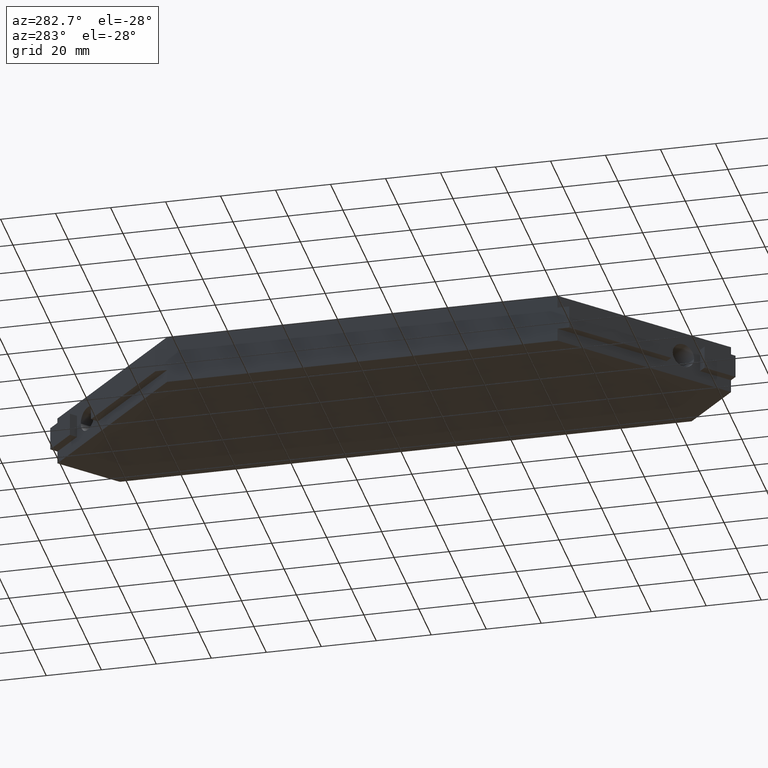
[diagram: clean part render]
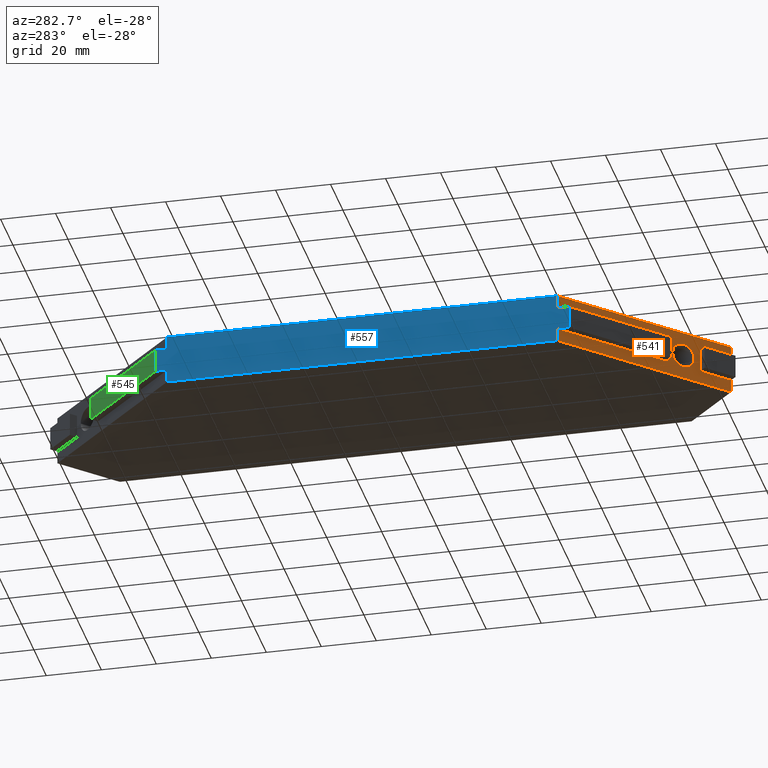
[diagram: same view with three faces highlighted in distinct colors, each labeled with its STEP entity id]
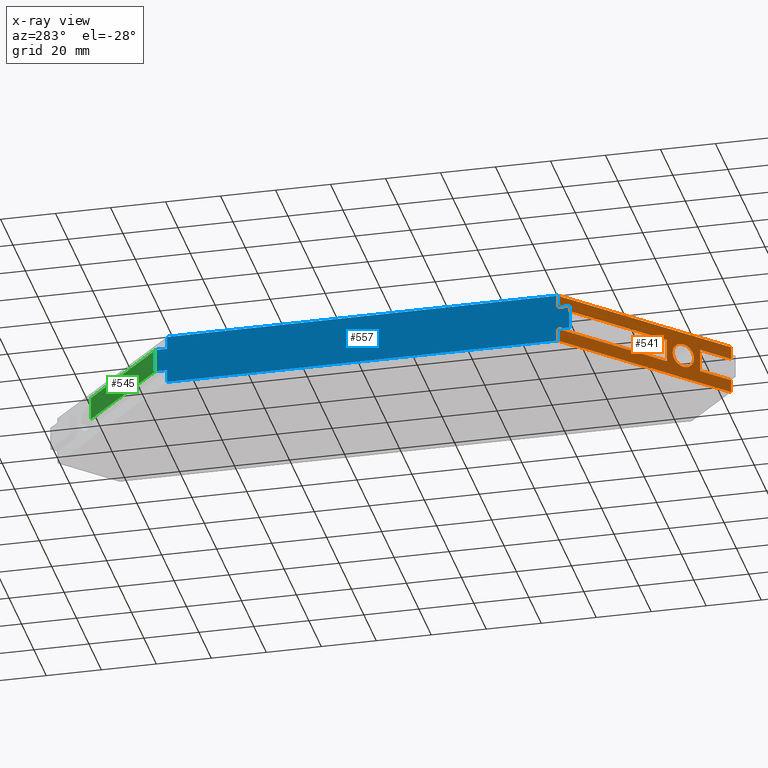
[diagram: x-ray of the same camera — body ghosted, the three highlighted faces saturated]
A machine part, auxiliary view with three faces highlighted in distinct colors.
The next image is the same camera in x-ray (body ghosted, the three faces saturated) — at least one of them is partly hidden behind the body in this view.
Their STEP definitions:

[orange] entity #541 — the highlighted planar face has unit normal (0.7071, 0.7071, 0).
#20=CIRCLE('',#577,4.49999999999994);
#28=FACE_BOUND('',#73,.T.);
#39=FACE_OUTER_BOUND('',#72,.T.);
#72=EDGE_LOOP('',(#384,#385,#386,#387,#388,#389,#390,#391,#392,#393,#394,
#395));
#73=EDGE_LOOP('',(#396));
#123=LINE('',#797,#189);
#124=LINE('',#799,#190);
#125=LINE('',#801,#191);
#126=LINE('',#803,#192);
#127=LINE('',#805,#193);
#128=LINE('',#807,#194);
#129=LINE('',#809,#195);
#130=LINE('',#811,#196);
#131=LINE('',#813,#197);
#132=LINE('',#815,#198);
#133=LINE('',#817,#199);
#134=LINE('',#818,#200);
#189=VECTOR('',#639,4.75);
#190=VECTOR('',#640,45.831998592191);
#191=VECTOR('',#641,8.5);
#192=VECTOR('',#642,45.831998592191);
#193=VECTOR('',#643,4.75);
#194=VECTOR('',#644,72.831998461923);
#195=VECTOR('',#645,4.75);
#196=VECTOR('',#646,12.9999997801435);
#197=VECTOR('',#647,8.5);
#198=VECTOR('',#648,12.9999997801435);
#199=VECTOR('',#649,4.75);
#200=VECTOR('',#650,72.831998461923);
#258=VERTEX_POINT('',#795);
#259=VERTEX_POINT('',#796);
#260=VERTEX_POINT('',#798);
#261=VERTEX_POINT('',#800);
#262=VERTEX_POINT('',#802);
#263=VERTEX_POINT('',#804);
#264=VERTEX_POINT('',#806);
#265=VERTEX_POINT('',#808);
#266=VERTEX_POINT('',#810);
#267=VERTEX_POINT('',#812);
#268=VERTEX_POINT('',#814);
#269=VERTEX_POINT('',#816);
#270=VERTEX_POINT('',#819);
#310=EDGE_CURVE('',#258,#259,#123,.T.);
#311=EDGE_CURVE('',#260,#259,#124,.T.);
#312=EDGE_CURVE('',#261,#260,#125,.T.);
#313=EDGE_CURVE('',#261,#262,#126,.T.);
#314=EDGE_CURVE('',#262,#263,#127,.T.);
#315=EDGE_CURVE('',#263,#264,#128,.T.);
#316=EDGE_CURVE('',#265,#264,#129,.T.);
#317=EDGE_CURVE('',#265,#266,#130,.T.);
#318=EDGE_CURVE('',#266,#267,#131,.T.);
#319=EDGE_CURVE('',#268,#267,#132,.T.);
#320=EDGE_CURVE('',#269,#268,#133,.T.);
#321=EDGE_CURVE('',#258,#269,#134,.T.);
#322=EDGE_CURVE('',#270,#270,#20,.T.);
#384=ORIENTED_EDGE('',*,*,#310,.T.);
#385=ORIENTED_EDGE('',*,*,#311,.F.);
#386=ORIENTED_EDGE('',*,*,#312,.F.);
#387=ORIENTED_EDGE('',*,*,#313,.T.);
#388=ORIENTED_EDGE('',*,*,#314,.T.);
#389=ORIENTED_EDGE('',*,*,#315,.T.);
#390=ORIENTED_EDGE('',*,*,#316,.F.);
#391=ORIENTED_EDGE('',*,*,#317,.T.);
#392=ORIENTED_EDGE('',*,*,#318,.T.);
#393=ORIENTED_EDGE('',*,*,#319,.F.);
#394=ORIENTED_EDGE('',*,*,#320,.F.);
#395=ORIENTED_EDGE('',*,*,#321,.F.);
#396=ORIENTED_EDGE('',*,*,#322,.F.);
#515=PLANE('',#576);
#541=ADVANCED_FACE('',(#39,#28),#515,.F.);
#576=AXIS2_PLACEMENT_3D('',#794,#637,#638);
#577=AXIS2_PLACEMENT_3D('',#820,#651,#652);
#637=DIRECTION('center_axis',(0.707106781186548,0.707106781186548,0.));
#638=DIRECTION('ref_axis',(0.,0.,-1.));
#639=DIRECTION('',(0.,0.,-1.));
#640=DIRECTION('',(-0.707106781186542,0.707106781186553,0.));
#641=DIRECTION('',(0.,0.,1.));
#642=DIRECTION('',(-0.707106781186542,0.707106781186553,0.));
#643=DIRECTION('',(0.,0.,-1.));
#644=DIRECTION('',(0.707106781186547,-0.707106781186548,0.));
#645=DIRECTION('',(0.,0.,-1.));
#646=DIRECTION('',(-0.707106781186547,0.707106781186548,0.));
#647=DIRECTION('',(0.,0.,1.));
#648=DIRECTION('',(-0.707106781186547,0.707106781186548,0.));
#649=DIRECTION('',(0.,0.,-1.));
#650=DIRECTION('',(0.707106781186547,-0.707106781186548,0.));
#651=DIRECTION('center_axis',(-0.707106781186544,-0.707106781186551,0.));
#652=DIRECTION('ref_axis',(-0.707106781186551,0.707106781186544,0.));
#794=CARTESIAN_POINT('Origin',(0.,-70.999999999716,18.));
#795=CARTESIAN_POINT('',(0.,-70.999999999716,18.));
#796=CARTESIAN_POINT('',(0.,-70.999999999716,13.25));
#797=CARTESIAN_POINT('',(0.,-70.999999999716,18.));
#798=CARTESIAN_POINT('',(32.4081169998703,-103.408116999587,13.25));
#799=CARTESIAN_POINT('',(32.4081169998703,-103.408116999587,13.25));
#800=CARTESIAN_POINT('',(32.4081169998703,-103.408116999587,4.75));
#801=CARTESIAN_POINT('',(32.4081169998703,-103.408116999587,4.75));
#802=CARTESIAN_POINT('',(0.,-70.999999999716,4.75));
#803=CARTESIAN_POINT('',(32.4081169998703,-103.408116999587,4.75));
#804=CARTESIAN_POINT('',(0.,-70.999999999716,0.));
#805=CARTESIAN_POINT('',(0.,-70.999999999716,4.75));
#806=CARTESIAN_POINT('',(51.499999999794,-122.49999999951,0.));
#807=CARTESIAN_POINT('',(0.,-70.999999999716,0.));
#808=CARTESIAN_POINT('',(51.499999999794,-122.49999999951,4.75));
#809=CARTESIAN_POINT('',(51.499999999794,-122.49999999951,4.75));
#810=CARTESIAN_POINT('',(42.3076119998309,-113.307611999547,4.75));
#811=CARTESIAN_POINT('',(51.499999999794,-122.49999999951,4.75));
#812=CARTESIAN_POINT('',(42.3076119998309,-113.307611999547,13.25));
#813=CARTESIAN_POINT('',(42.3076119998309,-113.307611999547,4.75));
#814=CARTESIAN_POINT('',(51.499999999794,-122.49999999951,13.25));
#815=CARTESIAN_POINT('',(51.499999999794,-122.49999999951,13.25));
#816=CARTESIAN_POINT('',(51.499999999794,-122.49999999951,18.));
#817=CARTESIAN_POINT('',(51.499999999794,-122.49999999951,18.));
#818=CARTESIAN_POINT('',(0.,-70.999999999716,18.));
#819=CARTESIAN_POINT('',(40.5398450305424,-111.539845030258,9.));
#820=CARTESIAN_POINT('Origin',(37.357864515203,-108.357864514919,9.));

[blue] entity #557 — the highlighted planar face has unit normal (1, 0, 0).
#55=FACE_OUTER_BOUND('',#89,.T.);
#89=EDGE_LOOP('',(#465,#466,#467,#468,#469,#470,#471,#472,#473,#474,#475,
#476));
#117=LINE('',#782,#183);
#121=LINE('',#790,#187);
#123=LINE('',#797,#189);
#127=LINE('',#805,#193);
#136=LINE('',#823,#202);
#139=LINE('',#827,#205);
#145=LINE('',#839,#211);
#147=LINE('',#842,#213);
#148=LINE('',#844,#214);
#160=LINE('',#870,#226);
#163=LINE('',#875,#229);
#164=LINE('',#877,#230);
#183=VECTOR('',#629,4.75);
#187=VECTOR('',#633,4.75);
#189=VECTOR('',#639,4.75);
#193=VECTOR('',#643,4.75);
#202=VECTOR('',#656,141.999999999432);
#205=VECTOR('',#661,141.999999999432);
#211=VECTOR('',#671,8.5);
#213=VECTOR('',#675,4.24264099998299);
#214=VECTOR('',#678,4.24264099998299);
#226=VECTOR('',#702,8.5);
#229=VECTOR('',#709,4.24264099998302);
#230=VECTOR('',#712,4.24264099998302);
#251=VERTEX_POINT('',#779);
#252=VERTEX_POINT('',#781);
#255=VERTEX_POINT('',#787);
#256=VERTEX_POINT('',#789);
#258=VERTEX_POINT('',#795);
#259=VERTEX_POINT('',#796);
#262=VERTEX_POINT('',#802);
#263=VERTEX_POINT('',#804);
#273=VERTEX_POINT('',#836);
#274=VERTEX_POINT('',#838);
#279=VERTEX_POINT('',#863);
#282=VERTEX_POINT('',#868);
#303=EDGE_CURVE('',#252,#251,#117,.T.);
#307=EDGE_CURVE('',#256,#255,#121,.T.);
#310=EDGE_CURVE('',#258,#259,#123,.T.);
#314=EDGE_CURVE('',#262,#263,#127,.T.);
#324=EDGE_CURVE('',#256,#258,#136,.T.);
#327=EDGE_CURVE('',#251,#263,#139,.T.);
#333=EDGE_CURVE('',#273,#274,#145,.T.);
#335=EDGE_CURVE('',#273,#252,#147,.T.);
#336=EDGE_CURVE('',#274,#255,#148,.T.);
#348=EDGE_CURVE('',#279,#282,#160,.T.);
#351=EDGE_CURVE('',#262,#279,#163,.T.);
#352=EDGE_CURVE('',#259,#282,#164,.T.);
#465=ORIENTED_EDGE('',*,*,#307,.T.);
#466=ORIENTED_EDGE('',*,*,#336,.F.);
#467=ORIENTED_EDGE('',*,*,#333,.F.);
#468=ORIENTED_EDGE('',*,*,#335,.T.);
#469=ORIENTED_EDGE('',*,*,#303,.T.);
#470=ORIENTED_EDGE('',*,*,#327,.T.);
#471=ORIENTED_EDGE('',*,*,#314,.F.);
#472=ORIENTED_EDGE('',*,*,#351,.T.);
#473=ORIENTED_EDGE('',*,*,#348,.T.);
#474=ORIENTED_EDGE('',*,*,#352,.F.);
#475=ORIENTED_EDGE('',*,*,#310,.F.);
#476=ORIENTED_EDGE('',*,*,#324,.F.);
#531=PLANE('',#593);
#557=ADVANCED_FACE('',(#55),#531,.F.);
#593=AXIS2_PLACEMENT_3D('',#878,#713,#714);
#629=DIRECTION('',(0.,0.,-1.));
#633=DIRECTION('',(0.,0.,-1.));
#639=DIRECTION('',(0.,0.,-1.));
#643=DIRECTION('',(0.,0.,-1.));
#656=DIRECTION('',(0.,-1.,0.));
#661=DIRECTION('',(0.,-1.,0.));
#671=DIRECTION('',(0.,0.,1.));
#675=DIRECTION('',(0.,-1.,0.));
#678=DIRECTION('',(0.,-1.,0.));
#702=DIRECTION('',(0.,0.,1.));
#709=DIRECTION('',(0.,-1.,0.));
#712=DIRECTION('',(0.,-1.,0.));
#713=DIRECTION('center_axis',(1.,0.,0.));
#714=DIRECTION('ref_axis',(0.,0.,-1.));
#779=CARTESIAN_POINT('',(0.,70.999999999716,0.));
#781=CARTESIAN_POINT('',(-2.842171E-14,70.999999999716,4.75));
#782=CARTESIAN_POINT('',(0.,70.999999999716,4.75));
#787=CARTESIAN_POINT('',(-2.842171E-14,70.999999999716,13.25));
#789=CARTESIAN_POINT('',(0.,70.999999999716,18.));
#790=CARTESIAN_POINT('',(0.,70.999999999716,18.));
#795=CARTESIAN_POINT('',(0.,-70.999999999716,18.));
#796=CARTESIAN_POINT('',(0.,-70.999999999716,13.25));
#797=CARTESIAN_POINT('',(0.,-70.999999999716,18.));
#802=CARTESIAN_POINT('',(0.,-70.999999999716,4.75));
#804=CARTESIAN_POINT('',(0.,-70.999999999716,0.));
#805=CARTESIAN_POINT('',(0.,-70.999999999716,4.75));
#823=CARTESIAN_POINT('',(0.,70.999999999716,18.));
#827=CARTESIAN_POINT('',(0.,70.999999999716,0.));
#836=CARTESIAN_POINT('',(-2.842171E-14,75.242640999699,4.75));
#838=CARTESIAN_POINT('',(-2.842171E-14,75.242640999699,13.25));
#839=CARTESIAN_POINT('',(-2.842171E-14,75.242640999699,4.75));
#842=CARTESIAN_POINT('',(-2.842171E-14,75.242640999699,4.75));
#844=CARTESIAN_POINT('',(-2.842171E-14,75.242640999699,13.25));
#863=CARTESIAN_POINT('',(0.,-75.242640999699,4.75));
#868=CARTESIAN_POINT('',(0.,-75.242640999699,13.25));
#870=CARTESIAN_POINT('',(0.,-75.242640999699,4.75));
#875=CARTESIAN_POINT('',(0.,-70.999999999716,4.75));
#877=CARTESIAN_POINT('',(0.,-70.999999999716,13.25));
#878=CARTESIAN_POINT('Origin',(0.,75.2426843067863,18.0000433070872));

[green] entity #545 — the highlighted planar face has unit normal (-0.7071, 0.7071, 0).
#43=FACE_OUTER_BOUND('',#77,.T.);
#77=EDGE_LOOP('',(#413,#414,#415,#416));
#141=LINE('',#832,#207);
#144=LINE('',#837,#210);
#145=LINE('',#839,#211);
#146=LINE('',#840,#212);
#207=VECTOR('',#665,8.5);
#210=VECTOR('',#670,42.8319983709626);
#211=VECTOR('',#671,8.5);
#212=VECTOR('',#672,42.8319983709626);
#271=VERTEX_POINT('',#830);
#272=VERTEX_POINT('',#831);
#273=VERTEX_POINT('',#836);
#274=VERTEX_POINT('',#838);
#329=EDGE_CURVE('',#271,#272,#141,.T.);
#332=EDGE_CURVE('',#271,#273,#144,.T.);
#333=EDGE_CURVE('',#273,#274,#145,.T.);
#334=EDGE_CURVE('',#272,#274,#146,.T.);
#413=ORIENTED_EDGE('',*,*,#332,.T.);
#414=ORIENTED_EDGE('',*,*,#333,.T.);
#415=ORIENTED_EDGE('',*,*,#334,.F.);
#416=ORIENTED_EDGE('',*,*,#329,.F.);
#519=PLANE('',#581);
#545=ADVANCED_FACE('',(#43),#519,.T.);
#581=AXIS2_PLACEMENT_3D('',#835,#668,#669);
#665=DIRECTION('',(0.,0.,1.));
#668=DIRECTION('center_axis',(-0.707106769513032,0.707106792860063,0.));
#669=DIRECTION('ref_axis',(0.,0.,1.));
#670=DIRECTION('',(-0.707106792860063,-0.707106769513032,0.));
#671=DIRECTION('',(0.,0.,1.));
#672=DIRECTION('',(-0.707106792860063,-0.707106769513032,0.));
#830=CARTESIAN_POINT('',(30.2867969998788,105.529436999578,4.75));
#831=CARTESIAN_POINT('',(30.2867969998788,105.529436999578,13.25));
#832=CARTESIAN_POINT('',(30.2867969998788,105.529436999578,4.75));
#835=CARTESIAN_POINT('Origin',(30.2867969998788,105.529436999578,4.75));
#836=CARTESIAN_POINT('',(-2.842171E-14,75.242640999699,4.75));
#837=CARTESIAN_POINT('',(30.2867969998788,105.529436999578,4.75));
#838=CARTESIAN_POINT('',(-2.842171E-14,75.242640999699,13.25));
#839=CARTESIAN_POINT('',(-2.842171E-14,75.242640999699,4.75));
#840=CARTESIAN_POINT('',(30.2867969998788,105.529436999578,13.25));